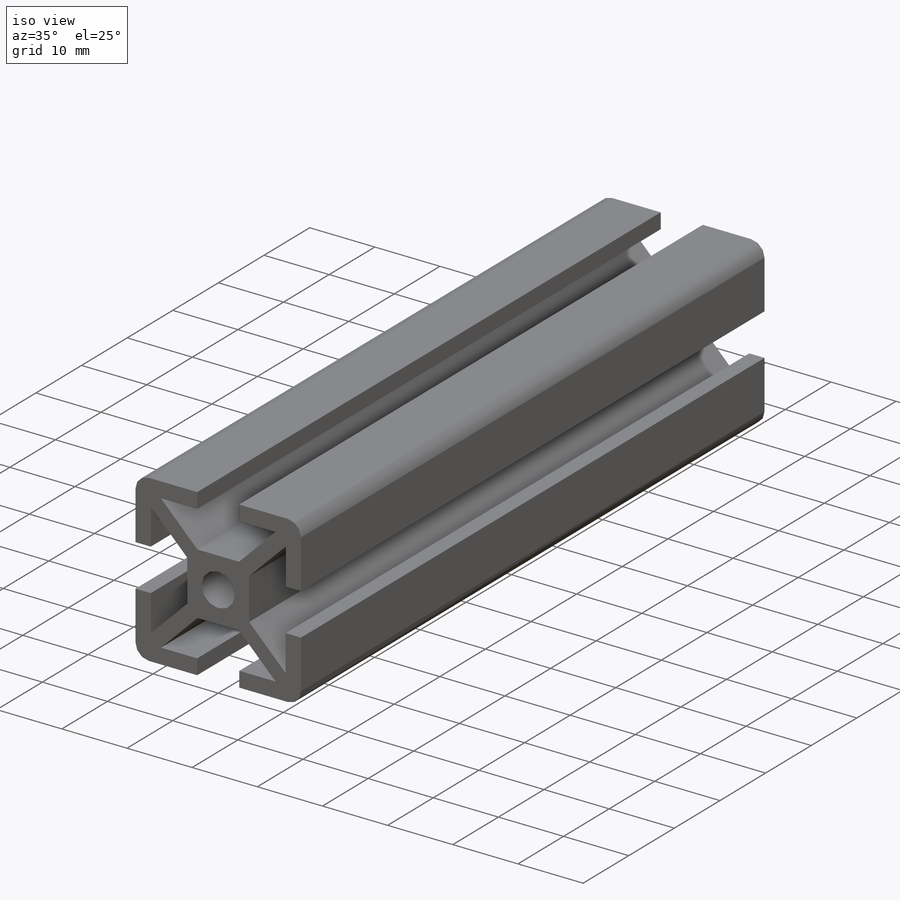
[diagram: iso view]
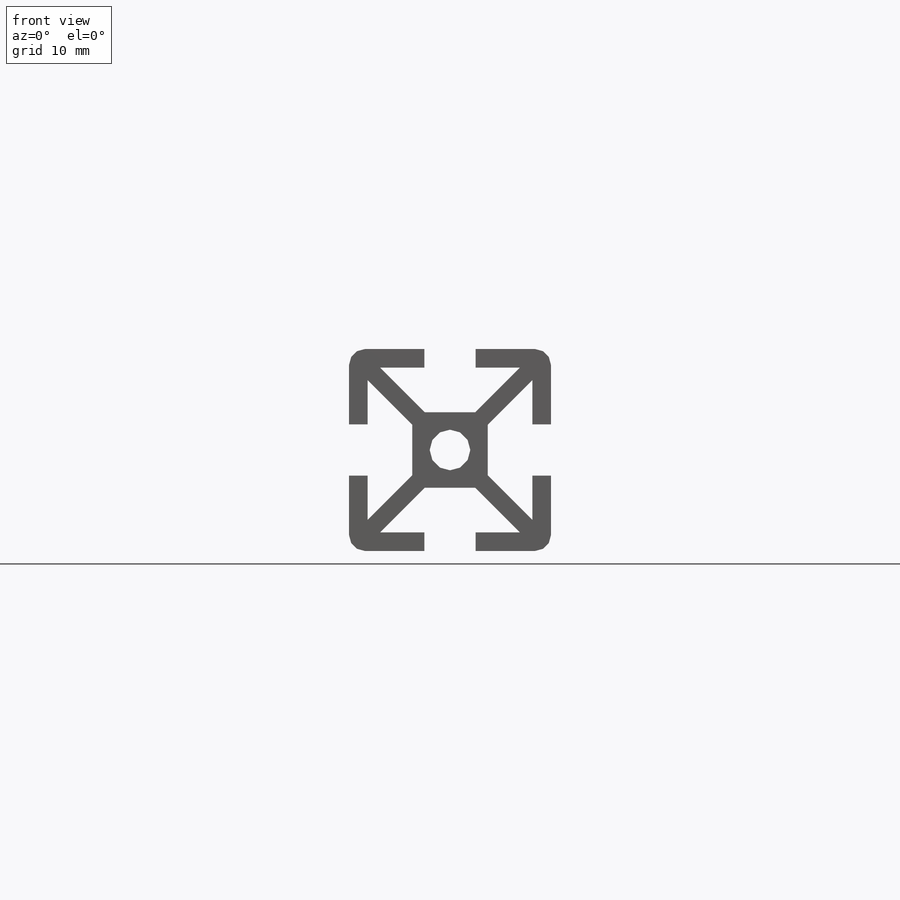
[diagram: front view]
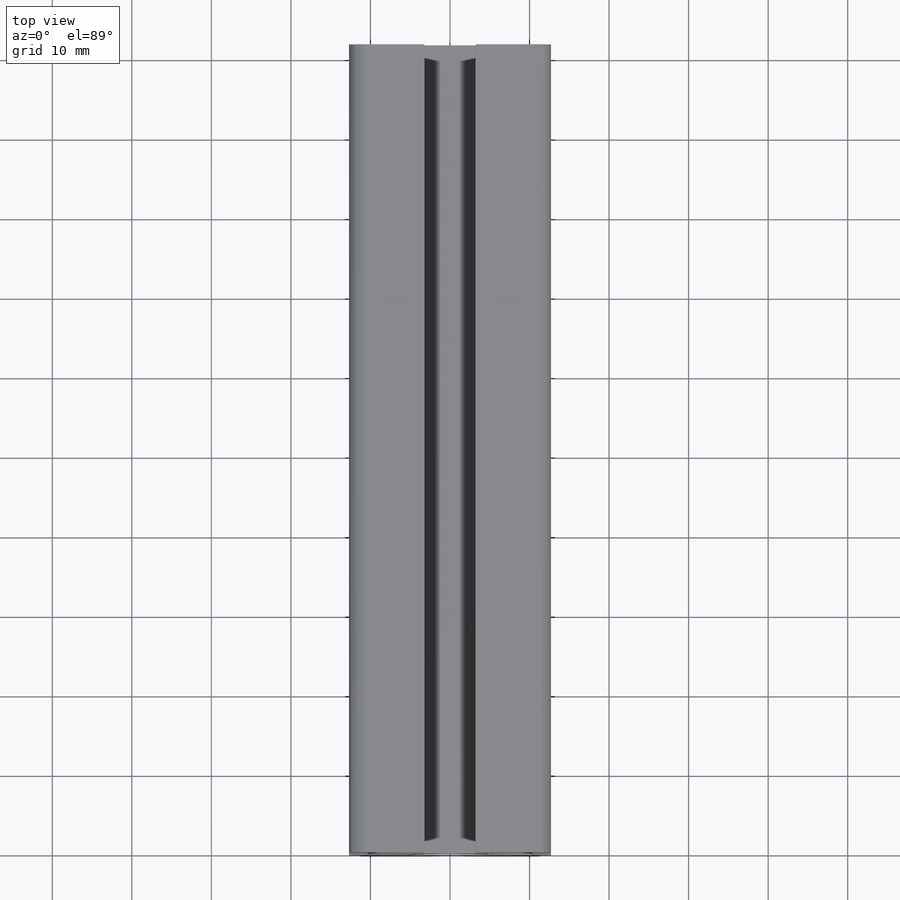
[diagram: top view]
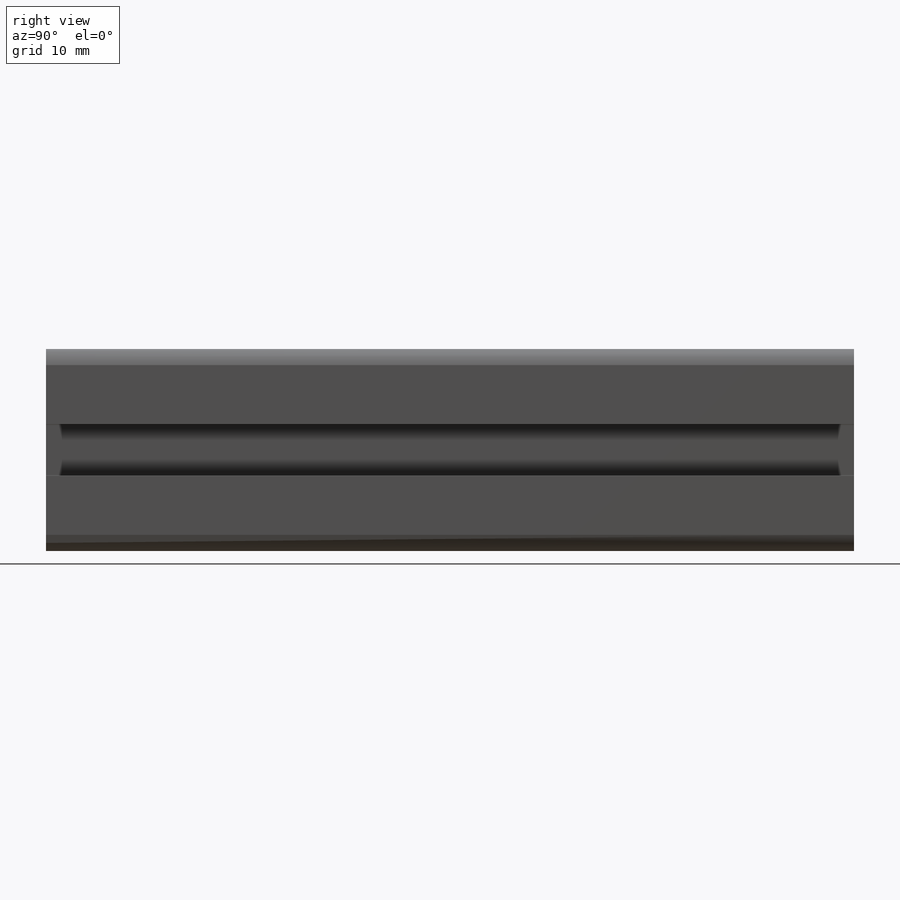
[diagram: right view]
SOLIDWORKS PART (.sldprt)
format: sldprt  version: not decoded by parser v0  size: 1,183,232 bytes
history: native  units: mm
features: sketch x34, cut_extrude x33, material x1 (+38 scaffold rows collapsed; 12 parser-record rows omitted)
feature tree (118):
  scaffold x38  (default folders/planes/origin — collapsed)
  material  "Material <not specified>"
  parser-record x12  (decoder bookkeeping rows leaked as tree rows — omitted from the tree; the rows remain in map.json)
  sketch  "Sketch1"  dims[c1.D2=2.032mm c1.D5=1.016mm c1.D6=1.016mm c1.D13=~1.042776mm c1.D15=5.1054mm c1.D3=5.08mm c1.D1=~17.549308mm c2.D1=45.0deg c2.D3=4.826mm c2.D4=4.826mm c2.D7=7.62mm c2.D8=7.62mm c2.D9=12.7mm c2.D10=12.7mm c2.D11=~7.529984mm c3.D11=2.0deg c3.D12=~36.763158mm c4.D12=3.0deg c5.D12=~36.763158mm c6.D12=2.0deg c6.D14=3.302mm c6.D10=12.7mm c6.D3=4.826mm c6.D5=2.2098mm c6.D6=3.2385mm c6.D7=3.2385mm c6.D8=5.6134mm c6.D11=5.6134mm c7.D3=7.9502mm c7.D4=7.9502mm c7.D6=9.4742mm c7.D7=9.4742mm]
  cut_extrude  "FinalCut"  Depth=101.6mm CutLength=101.6mm
  sketch  "Sketch18"
  sketch  "Sketch2"  dims[D2=14.3002mm D1=10.3124mm]
  cut_extrude  "AFA1"  Depth=10.668mm
  sketch  "Sketch3"  dims[D1=14.3002mm D2=10.3124mm]
  cut_extrude  "AFA2"  Depth=10.668mm
  sketch  "Sketch4"  dims[D1=14.3002mm D2=10.3124mm]
  cut_extrude  "AFA3"  Depth=10.668mm
  sketch  "Sketch5"  dims[D1=14.3002mm D2=10.3124mm]
  cut_extrude  "AFA4"  Depth=10.668mm
  sketch  "Sketch6"  dims[D1=14.3002mm D2=10.3124mm]
  cut_extrude  "AFB1"  Depth=10.668mm
  sketch  "Sketch7"  dims[D1=14.3002mm D2=10.3124mm]
  cut_extrude  "AFB2"  Depth=10.668mm
  sketch  "Sketch9"  dims[D1=14.3002mm D2=10.3124mm]
  cut_extrude  "AFB3"  Depth=10.668mm
  sketch  "Sketch10"  dims[D2=14.3002mm D1=10.3124mm]
  cut_extrude  "AFB4"  Depth=10.668mm
  sketch  "Sketch15"  dims[D1=0.762mm]
  cut_extrude  "TPA660035"  Depth=19.05mm
  sketch  "Sketch16"  dims[D1=0.762mm]
  cut_extrude  "TPB660035"  Depth=19.05mm
  sketch  "Sketch23"  dims[D1=0.762mm]
  cut_extrude  "TPA660036"  Depth=25.4mm
  sketch  "Sketch24"  dims[D1=0.762mm]
  cut_extrude  "TPB660036"  Depth=25.4mm
  sketch  "Sketch11"  dims[c1.D1=~31.55041mm c2.D1=45.0deg]
  cut_extrude  "MITA1"  [1 undecoded]
  sketch  "Sketch13"  dims[D1=15.875mm D2=17.9578mm]
  cut_extrude  "MITCBA1"  [1 undecoded]
  sketch  "Sketch14"  dims[D1=6.5278mm D2=17.9578mm]
  cut_extrude  "MITDRA1"  [1 undecoded]
  sketch  "Sketch26"  dims[D2=7.9375mm D1=17.9578mm]
  cut_extrude  "MITEBA1"  [1 undecoded]
  sketch  "Sketch27"  dims[D1=3.2639mm D2=17.9578mm]
  cut_extrude  "MITEDA1"  [1 undecoded]
  sketch  "Sketch12"  dims[c1.D1=~27.206954mm c2.D1=45.0deg]
  cut_extrude  "MITB1"  [1 undecoded]
  sketch  "Sketch21"  dims[c1.D1=15.875mm c1.D2=17.9578mm c1.D3=12.7mm c1.D4=10.668mm c2.D3=10.3632mm c2.D4=~1.277395mm c2.D2=17.9578mm]
  cut_extrude  "MITCBB1"  [1 undecoded]
  sketch  "Sketch22"  dims[c1.D1=~13.500082mm c1.D2=6.5278mm c2.D1=17.9578mm]
  cut_extrude  "MITDRB1"  [1 undecoded]
  sketch  "Sketch28"  dims[c1.D1=~5.252977mm c1.D2=7.9375mm c2.D1=17.9578mm]
  cut_extrude  "MITEBB1"  [1 undecoded]
  sketch  "Sketch29"  dims[D2=3.2639mm D1=17.9578mm]
  cut_extrude  "MITEDB1"  [1 undecoded]
  sketch  "Sketch17"  dims[c1.D1=~35.696903mm c2.D1=45.0deg]
  cut_extrude  "MITA3"  [1 undecoded]
  sketch  "Sketch30"  dims[D1=15.875mm D2=17.9578mm]
  cut_extrude  "MITCBA3"  [1 undecoded]
  sketch  "Sketch31"  dims[D1=6.5278mm D2=17.9578mm]
  cut_extrude  "MITDRA3"  [1 undecoded]
  sketch  "Sketch32"  dims[D1=7.9375mm D2=17.9578mm]
  cut_extrude  "MITEBA3"  [1 undecoded]
  sketch  "Sketch33"  dims[c1.D1=~3.669137mm c1.D2=3.2639mm c2.D1=17.9578mm]
  cut_extrude  "MITEDA3"  [1 undecoded]
  sketch  "Sketch19"  dims[c1.D1=~32.885959mm c2.D1=45.0deg]
  cut_extrude  "MITB3"  [1 undecoded]
  sketch  "Sketch34"  dims[D1=15.875mm D2=17.9578mm]
  cut_extrude  "MITCBB3"  [1 undecoded]
  sketch  "Sketch35"  dims[D1=6.5278mm D2=17.9578mm]
  cut_extrude  "MITDRB3"  [1 undecoded]
  sketch  "Sketch36"  dims[c1.D1=~4.819113mm c1.D2=7.9375mm c2.D1=17.9578mm]
  cut_extrude  "MITEBB3"  [1 undecoded]
  sketch  "Sketch37"  dims[D2=3.2639mm D1=17.9578mm]
  cut_extrude  "MITEDB3"  [1 undecoded]
decode coverage: 46 of 67 modeling features carry decoded parameters
note: ~ marks probable driven/reference dimensions
note: 20 parameter values undecoded
summary: no parameter record found for 20 features
note: suppression state not decoded; provenance and decode notes live in map.json
